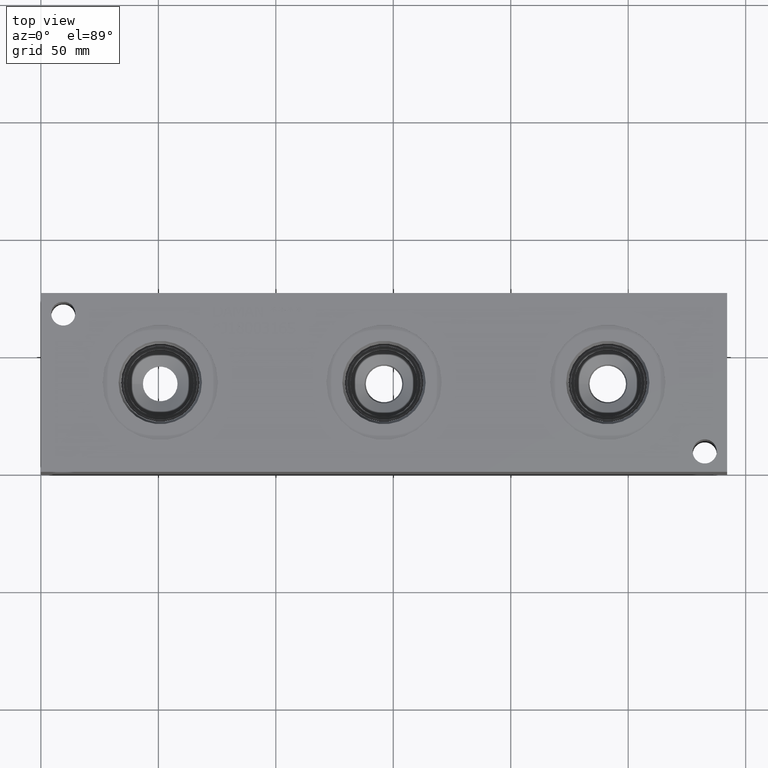
[diagram: clean part render]
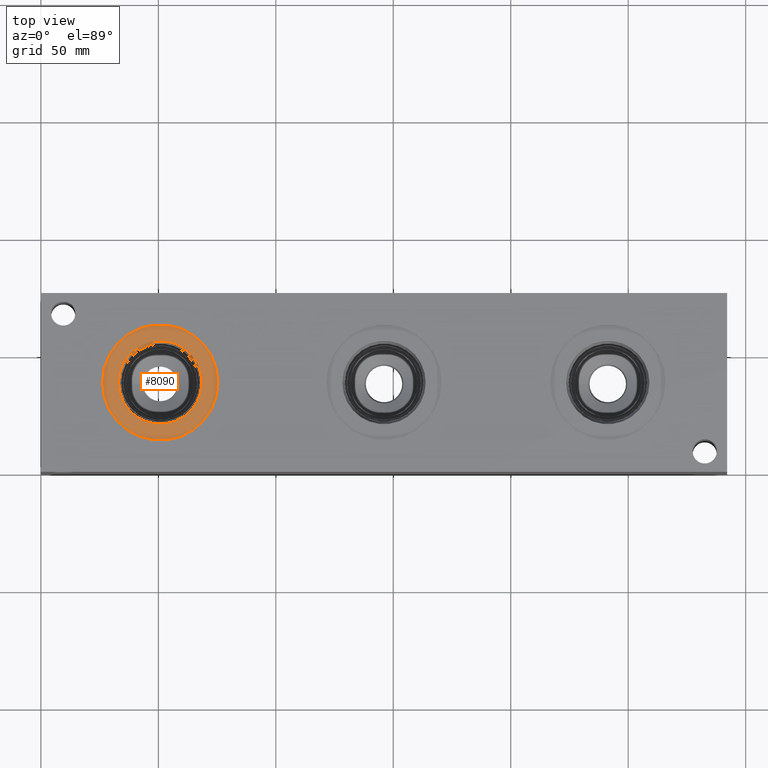
[diagram: same view with one face highlighted and labeled with its STEP entity id]
A machine part, top view. The second image highlights one B-rep face of the part: STEP entity #8090.
In plain terms, the highlighted planar face has unit normal (0, 0, -1).
Its self-contained STEP definition (entity closure, byte-faithful):
#230=CIRCLE('',#8549,24.5618);
#231=CIRCLE('',#8550,24.5618);
#232=CIRCLE('',#8552,17.7546);
#233=CIRCLE('',#8553,17.7546);
#281=FACE_BOUND('',#1497,.T.);
#1035=FACE_OUTER_BOUND('',#1496,.T.);
#1496=EDGE_LOOP('',(#7079,#7080));
#1497=EDGE_LOOP('',(#7081,#7082));
#3753=VERTEX_POINT('',#13928);
#3754=VERTEX_POINT('',#13930);
#3755=VERTEX_POINT('',#13934);
#3756=VERTEX_POINT('',#13935);
#4870=EDGE_CURVE('',#3753,#3754,#230,.T.);
#4871=EDGE_CURVE('',#3754,#3753,#231,.T.);
#4872=EDGE_CURVE('',#3755,#3756,#232,.T.);
#4873=EDGE_CURVE('',#3756,#3755,#233,.T.);
#7079=ORIENTED_EDGE('',*,*,#4871,.F.);
#7080=ORIENTED_EDGE('',*,*,#4870,.F.);
#7081=ORIENTED_EDGE('',*,*,#4872,.T.);
#7082=ORIENTED_EDGE('',*,*,#4873,.T.);
#7359=PLANE('',#8551);
#8090=ADVANCED_FACE('',(#1035,#281),#7359,.F.);
#8549=AXIS2_PLACEMENT_3D('',#13931,#10181,#10182);
#8550=AXIS2_PLACEMENT_3D('',#13932,#10183,#10184);
#8551=AXIS2_PLACEMENT_3D('',#13933,#10185,#10186);
#8552=AXIS2_PLACEMENT_3D('',#13936,#10187,#10188);
#8553=AXIS2_PLACEMENT_3D('',#13937,#10189,#10190);
#10181=DIRECTION('center_axis',(0.,0.,-1.));
#10182=DIRECTION('ref_axis',(1.,0.,0.));
#10183=DIRECTION('center_axis',(0.,0.,-1.));
#10184=DIRECTION('ref_axis',(1.,0.,0.));
#10185=DIRECTION('center_axis',(0.,0.,-1.));
#10186=DIRECTION('ref_axis',(-1.,0.,0.));
#10187=DIRECTION('center_axis',(0.,0.,-1.));
#10188=DIRECTION('ref_axis',(1.,0.,0.));
#10189=DIRECTION('center_axis',(0.,0.,-1.));
#10190=DIRECTION('ref_axis',(1.,0.,0.));
#13928=CARTESIAN_POINT('',(26.2382,38.1,75.4126));
#13930=CARTESIAN_POINT('',(75.3618,38.1,75.4126));
#13931=CARTESIAN_POINT('Origin',(50.8,38.1,75.4126));
#13932=CARTESIAN_POINT('Origin',(50.8,38.1,75.4126));
#13933=CARTESIAN_POINT('Origin',(68.5546,38.1,75.4126));
#13934=CARTESIAN_POINT('',(68.5546,38.1,75.4126));
#13935=CARTESIAN_POINT('',(33.0454,38.1,75.4126));
#13936=CARTESIAN_POINT('Origin',(50.8,38.1,75.4126));
#13937=CARTESIAN_POINT('Origin',(50.8,38.1,75.4126));